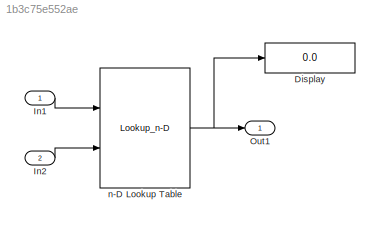
MODEL slx_1b3c75e552ae
KIND model
CONFIG AbsTol = auto
CONFIG EnableMultiTasking = on
CONFIG FixedStep = 0.200000
CONFIG MaxStep = auto
CONFIG MinStep = auto
CONFIG RelTol = 1e-3
CONFIG SampleTimeConstraint = Unconstrained
CONFIG Solver = FixedStepDiscrete
CONFIG SolverName = FixedStepDiscrete
CONFIG StartTime = 0.0
CONFIG StopTime = 10.0
WORKSPACE source: MAT-file member
WORKSPACE compositionalMap: struct (value not decoded)
BLOCK [Display] Display
  Decimation = 1
  Ports = [1]
BLOCK [Inport] In1
  IconDisplay = Port number
BLOCK [Inport] In2
  IconDisplay = Port number
  Port = 2
BLOCK [Outport] Out1
  IconDisplay = Port number
BLOCK [Lookup_n-D] n-D Lookup Table
  BreakpointsForDimension1 = [4,5,6]
  BreakpointsForDimension2 = [7,8]
  BreakpointsForDimension3 = [5 6]
  InternalRulePriority = Speed
  Ports = [2, 1]
  RndMeth = Simplest
  Table = [11 14 ; 12 15 ; 13 16]
LINE In1:1 -> n-D Lookup Table:1
LINE In2:1 -> n-D Lookup Table:2
NET n-D Lookup Table:1 -> Display:1, Out1:1
note: NET lines group one-source signal fan-out (src -> all destinations, sorted); 1:1 wires keep LINE
